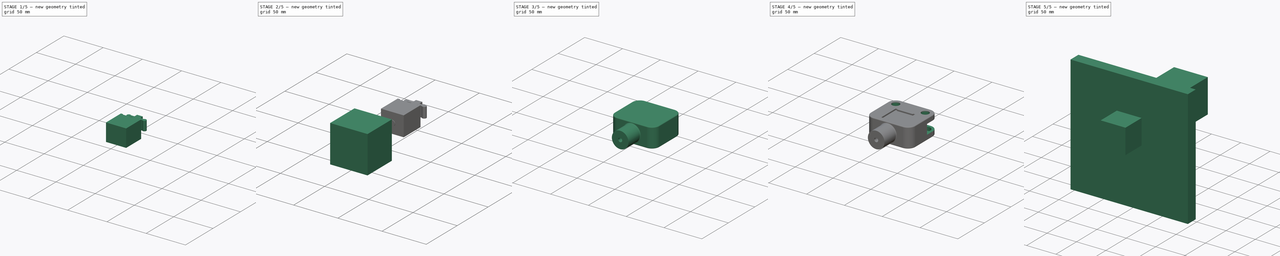
[diagram: build sequence overview — one tinted view per stage of 5, left to right]
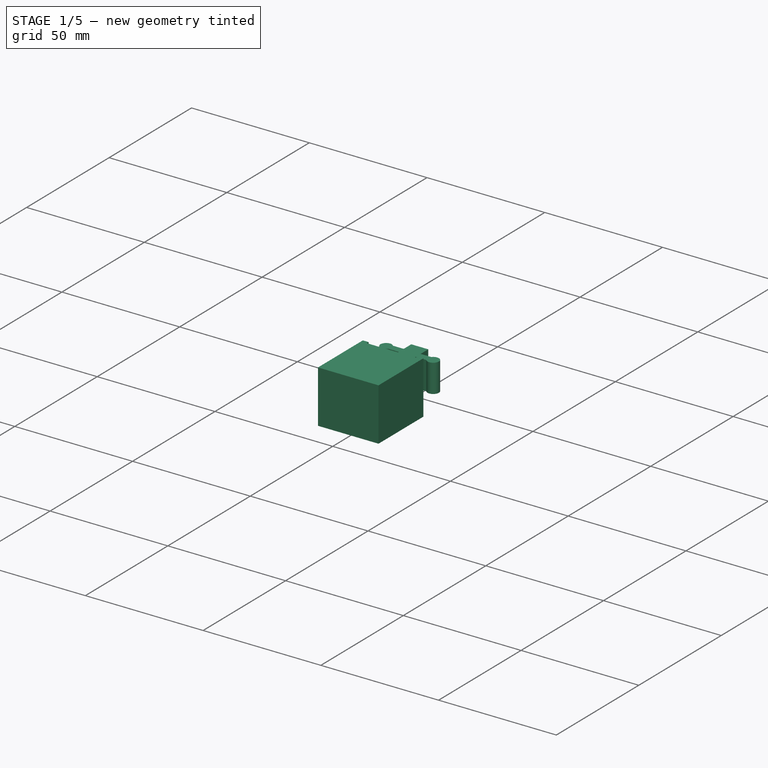
[diagram: stage 1 of 5 — iso view after this stage's code; geometry added in this stage tinted green]
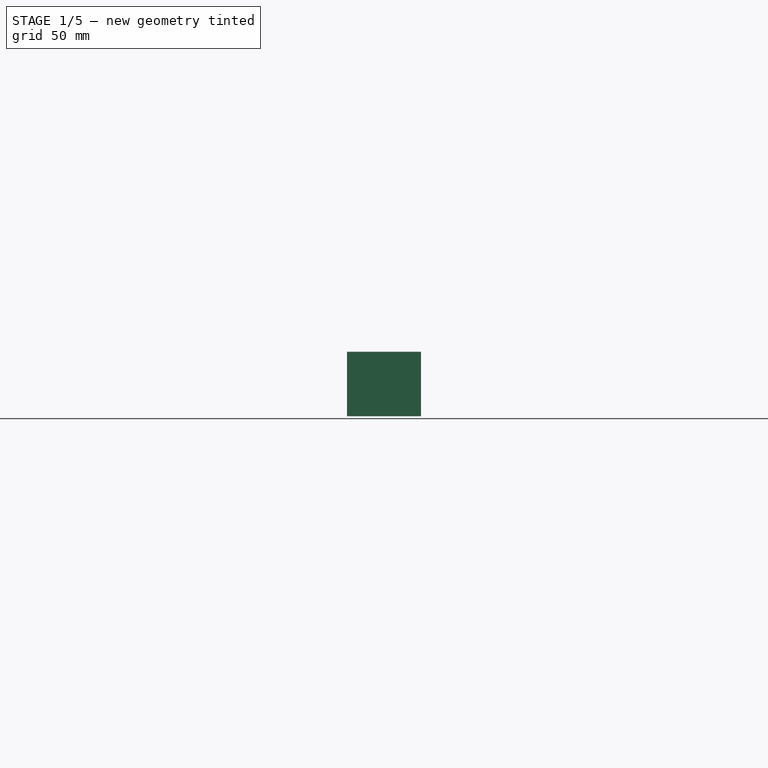
[diagram: stage 1 of 5 — front view after this stage's code; geometry added in this stage tinted green]
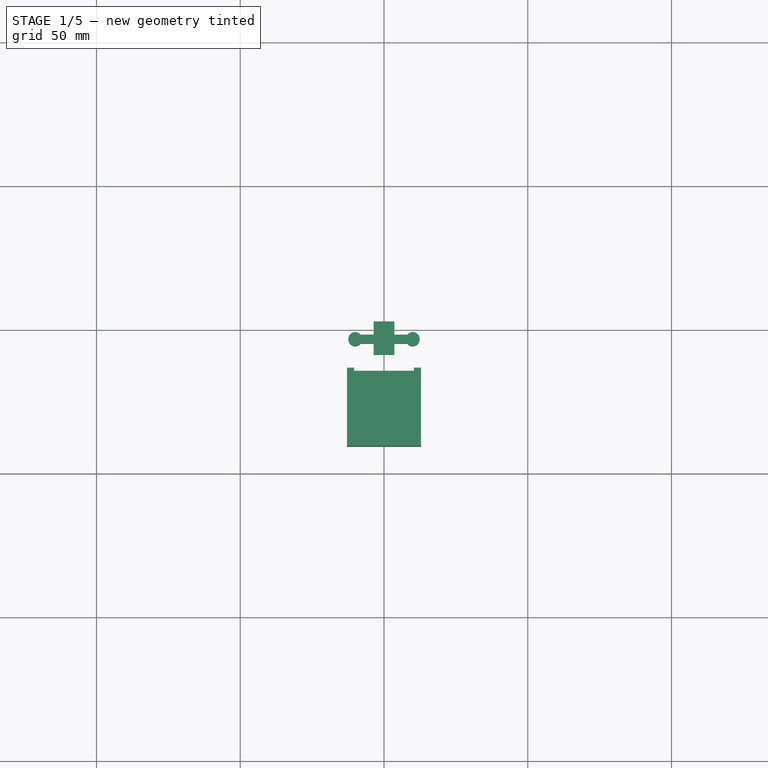
[diagram: stage 1 of 5 — top view after this stage's code; geometry added in this stage tinted green]
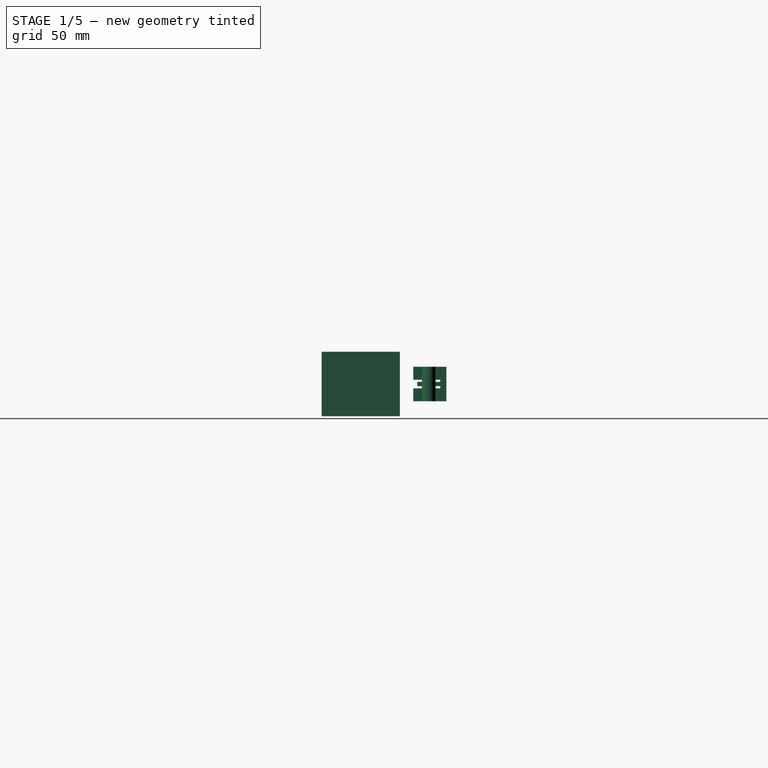
[diagram: stage 1 of 5 — right view after this stage's code; geometry added in this stage tinted green]
FCSTD DOCUMENT  (FreeCAD 0.15R4671 (Git))
Label: Claw5
License: All rights reserved
LicenseURL: http://en.wikipedia.org/wiki/All_rights_reserved
objects: Sketcher::SketchObject×24, PartDesign::Pad×13, PartDesign::Pocket×11, PartDesign::Fillet×2, Part::Box×1
note: 75 computed .brp shape members not serialized (recipe doc carries the construction recipe); baked Part::Feature solids carry a one-line shape summary decoded from their .brp

FEATURE [Sketcher::SketchObject] Sketch002
  Placement = pos=(0,0,-11.2) rot=(0,0,1;0rad)
  sketch-geometry (8):
    g0: LineSegment StartX=12.85 StartY=-63.3557 StartZ=0 EndX=12.85 EndY=-90.5557 EndZ=0
    g1: LineSegment StartX=12.85 StartY=-90.5557 StartZ=0 EndX=-12.85 EndY=-90.5557 EndZ=0
    g2: LineSegment StartX=-12.85 StartY=-90.5557 StartZ=0 EndX=-12.85 EndY=-63.3557 EndZ=0
    g3: LineSegment StartX=-12.85 StartY=-63.3557 StartZ=0 EndX=-10.4 EndY=-63.3557 EndZ=0
    g4: LineSegment StartX=-10.4 StartY=-63.3557 StartZ=0 EndX=-10.4 EndY=-64.4557 EndZ=0
    g5: LineSegment StartX=-10.4 StartY=-64.4557 StartZ=0 EndX=10.4 EndY=-64.4557 EndZ=0
    g6: LineSegment StartX=10.4 StartY=-64.4557 StartZ=0 EndX=10.4 EndY=-63.3557 EndZ=0
    g7: LineSegment StartX=10.4 StartY=-63.3557 StartZ=0 EndX=12.85 EndY=-63.3557 EndZ=0
  constraints (23):
    c: Coincident(g0,g1)
    c: Coincident(g1,g2)
    c: Horizontal(g1)
    c: Vertical(g0)
    c: Vertical(g2)
    c: Coincident(g2,g3)
    c: Coincident(g3,g4)
    c: Vertical(g4)
    c: Coincident(g4,g5)
    c: Horizontal(g5)
    c: Coincident(g5,g6)
    c: Vertical(g6)
    c: Coincident(g6,g7)
    c: Coincident(g7,g0)
    c: Horizontal(g7)
    c: Equal(g7,g3)
    c: Symmetric(g4,g5,g-2)
    c: DistanceX(g1) = -25.7
    c: DistanceX(g5) = 20.8
    c: DistanceY(g4) = -1.1
    c: Horizontal(g3)
    c: Equal(g4,g6)
    c: DistanceY(g0) = -27.2
FEATURE [PartDesign::Pad] Pad002
  Length = 22.4
  Length2 = 100
  Placement = pos=(0,0,-11.2) rot=(0,0,1;0rad)
  Sketch = -> Sketch002
  Type = 0
FEATURE [Sketcher::SketchObject] Sketch019
  Placement = pos=(0,0,-6) rot=(0,0,1;0rad)
  sketch-geometry (14):
    g0: LineSegment StartX=3.6 StartY=-54.8 StartZ=0 EndX=3.6 EndY=-58.7 EndZ=0
    g1: LineSegment StartX=3.6 StartY=-58.7 StartZ=0 EndX=-3.6 EndY=-58.7 EndZ=0
    g2: LineSegment StartX=-3.6 StartY=-58.7 StartZ=0 EndX=-3.6 EndY=-54.8 EndZ=0
    g3: LineSegment StartX=3.6 StartY=-51.8 StartZ=0 EndX=3.6 EndY=-47.2 EndZ=0
    g4: LineSegment StartX=3.6 StartY=-47.2 StartZ=0 EndX=-3.6 EndY=-47.2 EndZ=0
    g5: LineSegment StartX=-3.6 StartY=-47.2 StartZ=0 EndX=-3.6 EndY=-51.8 EndZ=0
    g6: ArcOfCircle CenterX=-10 CenterY=-53.3 CenterZ=0 NormalX=0 NormalY=0 NormalZ=1 Radius=2.4 StartAngle=0.675132 EndAngle=5.60805
    g7: ArcOfCircle CenterX=10 CenterY=-53.3 CenterZ=0 NormalX=0 NormalY=0 NormalZ=1 Radius=2.4 StartAngle=3.81672 EndAngle=8.74965
    g8: LineSegment StartX=-3.6 StartY=-54.8 StartZ=0 EndX=-8.1265 EndY=-54.8 EndZ=0
    g9: LineSegment StartX=-3.6 StartY=-51.8 StartZ=0 EndX=-8.1265 EndY=-51.8 EndZ=0
    g10: LineSegment [constr] StartX=-8.1265 StartY=-54.8 StartZ=0 EndX=-8.1265 EndY=-51.8 EndZ=0
    g11: LineSegment [constr] StartX=8.1265 StartY=-54.8 StartZ=0 EndX=8.1265 EndY=-51.8 EndZ=0
    g12: LineSegment StartX=3.6 StartY=-51.8 StartZ=0 EndX=8.1265 EndY=-51.8 EndZ=0
    g13: LineSegment StartX=8.1265 StartY=-54.8 StartZ=0 EndX=3.6 EndY=-54.8 EndZ=0
  constraints (41):
    c: Coincident(g0,g1)
    c: Coincident(g1,g2)
    c: Horizontal(g1)
    c: Vertical(g0)
    c: Vertical(g2)
    c: Symmetric(g1,g0,g-2)
    c: DistanceX(g1) = -7.2
    c: Coincident(g3,g4)
    c: Coincident(g4,g5)
    c: Horizontal(g4)
    c: Vertical(g3)
    c: Vertical(g5)
    c: Symmetric(g3,g4,g-2)
    c: Equal(g4,g1)
    c: Symmetric(g7,g6,g-2)
    c: DistanceX(g6,g7) = 20
    c: DistanceY(g-1,g6) = -53.3
    c: Coincident(g8,g2)
    c: Coincident(g8,g6)
    c: Horizontal(g8)
    c: Coincident(g9,g5)
    c: Coincident(g6,g9)
    c: Equal(g6,g7)
    c: Radius(g6) = 2.4
    c: Horizontal(g9)
    c: Coincident(g10,g6)
    c: Coincident(g10,g6)
    c: Vertical(g10)
    c: Coincident(g11,g7)
    c: Coincident(g11,g7)
    c: Vertical(g11)
    c: Equal(g11,g10)
    c: Coincident(g12,g3)
    c: Coincident(g12,g7)
    c: Coincident(g13,g7)
    c: Coincident(g13,g0)
    c: Horizontal(g13)
    c: Horizontal(g12)
    c: DistanceY(g11) = 3
    c: DistanceY(g1,g4) = 11.5
    c: DistanceY(g6,g1) = -5.4
FEATURE [PartDesign::Pad] Pad011
  Length = 12
  Length2 = 100
  Placement = pos=(0,0,-6) rot=(0,0,1;0rad)
  Sketch = -> Sketch019
  Type = 0
FEATURE [PartDesign::Pocket] Pocket011
  Length = 9.4
  Placement = pos=(0,0,-6) rot=(0,0,1;0rad)
  Sketch = -> Sketch020
  Type = 0
FEATURE [Sketcher::SketchObject] Sketch024
  Placement = pos=(0,-58.7,-6) rot=(1,0,0;1.5708rad)
  Support = -> Pocket011 [Face23]
  sketch-geometry (4):
    g0: LineSegment StartX=-3.6 StartY=6.75 StartZ=0 EndX=3.6 EndY=6.75 EndZ=0
    g1: LineSegment StartX=3.6 StartY=6.75 StartZ=0 EndX=3.6 EndY=5.25 EndZ=0
    g2: LineSegment StartX=3.6 StartY=5.25 StartZ=0 EndX=-3.6 EndY=5.25 EndZ=0
    g3: LineSegment StartX=-3.6 StartY=5.25 StartZ=0 EndX=-3.6 EndY=6.75 EndZ=0
FEATURE [PartDesign::Pocket] Pocket012
  Length = 1.4
  Placement = pos=(0,0,-6) rot=(0,0,1;0rad)
  Sketch = -> Sketch024
  Type = 0
FEATURE [Sketcher::SketchObject] Sketch021
  Placement = pos=(0,-47.2,-6) rot=(0,0.707107,0.707107;3.14159rad)
  Support = -> Pocket012 [Face18]
  sketch-geometry (1):
    g0: Circle CenterX=0 CenterY=6 CenterZ=0 NormalX=0 NormalY=0 NormalZ=1 Radius=1
  constraints (1):
    c: Radius(g0) = 1
FEATURE [PartDesign::Pocket] Pocket013  label="ROCKER"
  Length = 5
  Placement = pos=(0,0,-6) rot=(0,0,1;0rad)
  Sketch = -> Sketch021
  Type = 0
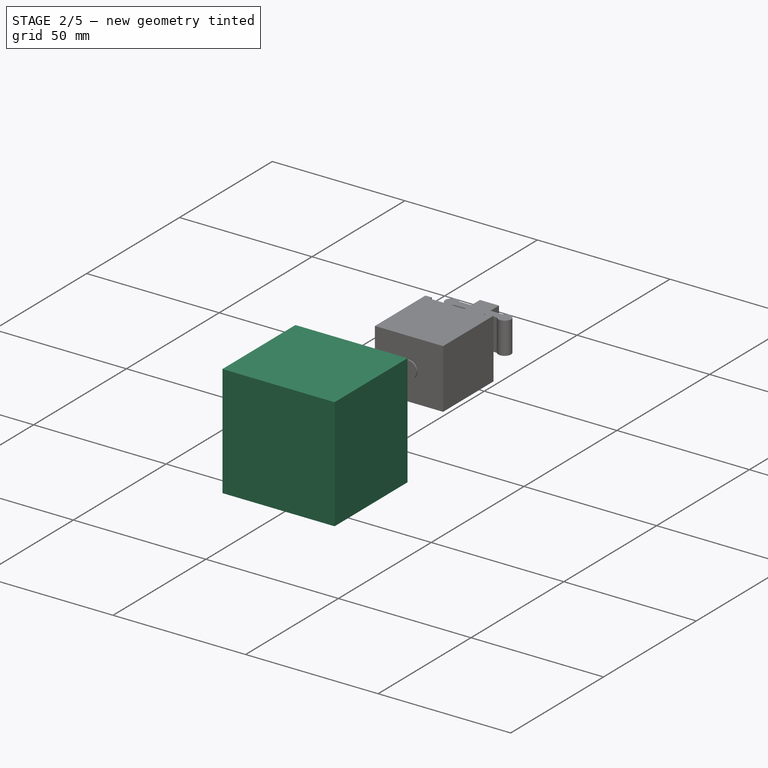
[diagram: stage 2 of 5 — iso view after this stage's code; geometry added in this stage tinted green]
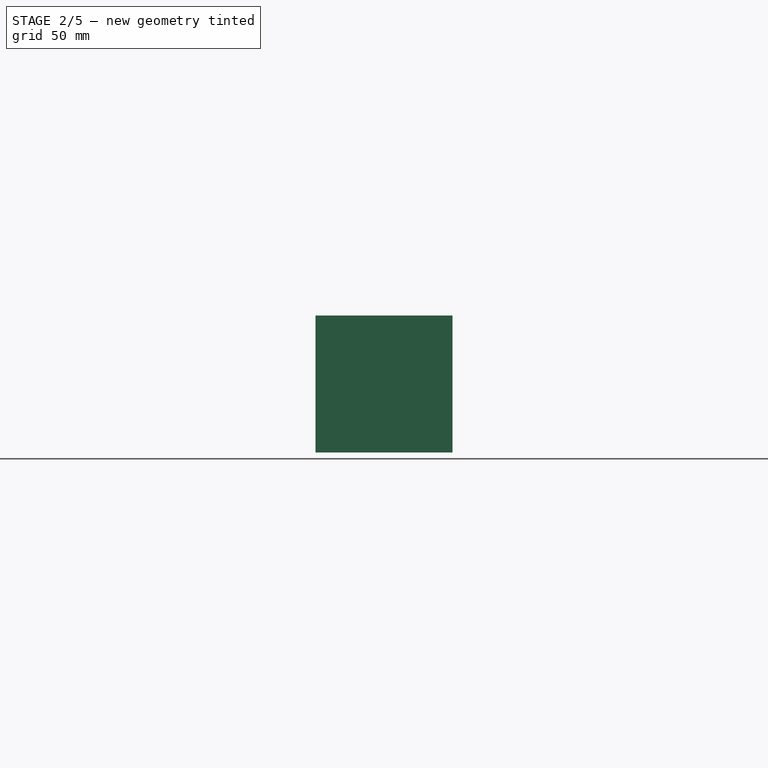
[diagram: stage 2 of 5 — front view after this stage's code; geometry added in this stage tinted green]
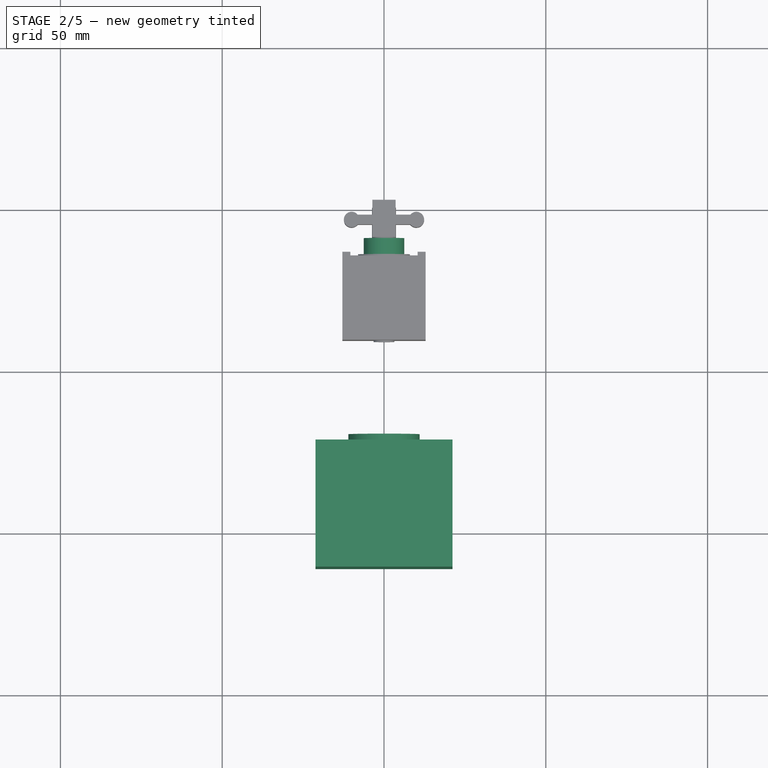
[diagram: stage 2 of 5 — top view after this stage's code; geometry added in this stage tinted green]
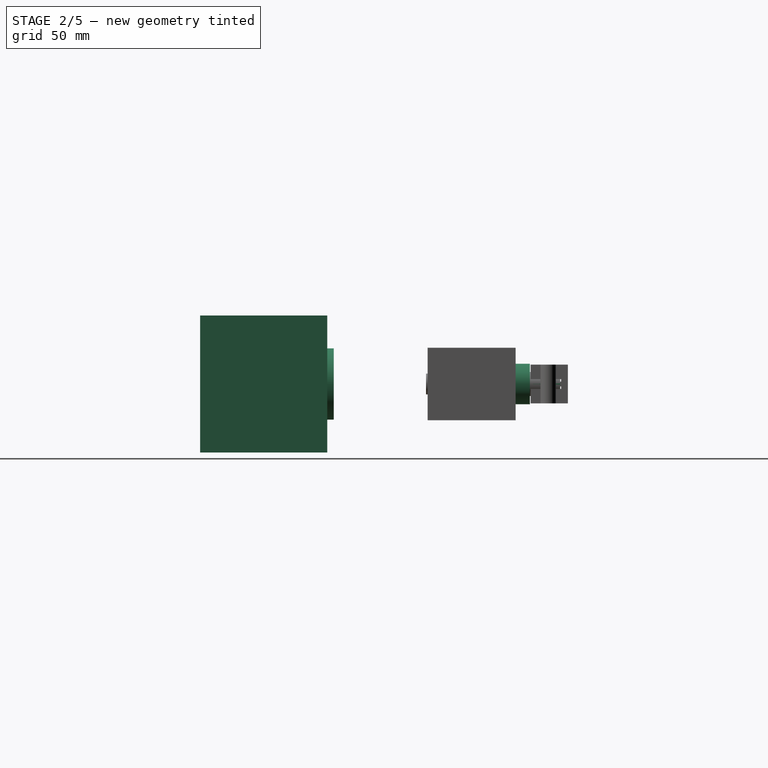
[diagram: stage 2 of 5 — right view after this stage's code; geometry added in this stage tinted green]
FEATURE [Sketcher::SketchObject] Sketch006
  Placement = pos=(0,0,-21.15) rot=(0,0,1;0rad)
  sketch-geometry (4):
    g0: LineSegment StartX=-21.15 StartY=-121.55 StartZ=0 EndX=21.15 EndY=-121.55 EndZ=0
    g1: LineSegment StartX=21.15 StartY=-121.55 StartZ=0 EndX=21.15 EndY=-160.85 EndZ=0
    g2: LineSegment StartX=21.15 StartY=-160.85 StartZ=0 EndX=-21.15 EndY=-160.85 EndZ=0
    g3: LineSegment StartX=-21.15 StartY=-160.85 StartZ=0 EndX=-21.15 EndY=-121.55 EndZ=0
  constraints (12):
    c: Coincident(g0,g1)
    c: Coincident(g1,g2)
    c: Coincident(g2,g3)
    c: Coincident(g3,g0)
    c: Horizontal(g0)
    c: Horizontal(g2)
    c: Vertical(g1)
    c: Vertical(g3)
    c: Symmetric(g0,g0,g-2)
    c: DistanceX(g0) = 42.3
    c: DistanceY(g1) = -39.3
    c: DistanceY(g-1,g0) = -121.55
FEATURE [PartDesign::Pad] Pad006
  Length = 42.3
  Length2 = 100
  Placement = pos=(0,0,-21.15) rot=(0,0,1;0rad)
  Sketch = -> Sketch006
  Type = 0
FEATURE [Sketcher::SketchObject] Sketch007
  ExternalGeometry = -> [Pad006]
  Placement = pos=(0,-121.55,-21.15) rot=(0,0.707107,0.707107;3.14159rad)
  Support = -> Pad006 [Face1]
  sketch-geometry (3):
    g0: LineSegment [constr] StartX=0 StartY=0 StartZ=0 EndX=0 EndY=21.15 EndZ=0
    g1: LineSegment [constr] StartX=0 StartY=21.15 StartZ=0 EndX=0 EndY=42.3 EndZ=0
    g2: Circle CenterX=0 CenterY=21.15 CenterZ=0 NormalX=0 NormalY=0 NormalZ=1 Radius=11
  constraints (8):
    c: Coincident(g0,g-1)
    c: Vertical(g0)
    c: Coincident(g1,g0)
    c: PointOnObject(g1,g-3)
    c: Vertical(g1)
    c: Equal(g0,g1)
    c: Coincident(g2,g0)
    c: Radius(g2) = 11
FEATURE [PartDesign::Pad] Pad007
  Length = 2
  Length2 = 100
  Placement = pos=(0,0,-21.15) rot=(0,0,1;0rad)
  Sketch = -> Sketch007
  Type = 0
FEATURE [PartDesign::Pad] Pad012
  Length = 0.5
  Length2 = 100
  Placement = pos=(0,0,-11.2) rot=(0,0,1;0rad)
  Sketch = -> Sketch004
  Type = 0
FEATURE [Sketcher::SketchObject] Sketch003
  ExternalGeometry = -> [Pad002]
  Placement = pos=(0,-64.4557,-11.2) rot=(0,0.707107,0.707107;3.14159rad)
  Support = -> Pad012 [Face11]
  sketch-geometry (3):
    g0: Circle CenterX=0 CenterY=11.2 CenterZ=0 NormalX=0 NormalY=0 NormalZ=1 Radius=8
    g1: LineSegment [constr] StartX=0 StartY=0 StartZ=0 EndX=0 EndY=11.2 EndZ=0
    g2: LineSegment [constr] StartX=0 StartY=11.2 StartZ=0 EndX=0 EndY=22.4 EndZ=0
  constraints (8):
    c: PointOnObject(g0,g-2)
    c: Coincident(g1,g-1)
    c: Coincident(g1,g0)
    c: Coincident(g2,g0)
    c: PointOnObject(g2,g-3)
    c: Vertical(g2)
    c: Equal(g1,g2)
    c: Radius(g0) = 8
FEATURE [PartDesign::Pad] Pad013
  Length = 0.5
  Length2 = 100
  Placement = pos=(0,0,-11.2) rot=(0,0,1;0rad)
  Sketch = -> Sketch003
  Type = 0
FEATURE [Sketcher::SketchObject] Sketch022
  ExternalGeometry = -> [Pad013]
  Placement = pos=(0,-63.9557,-11.2) rot=(0,0.707107,0.707107;3.14159rad)
  Support = -> Pad013 [Face14]
  sketch-geometry (1):
    g0: Circle CenterX=0 CenterY=11.2 CenterZ=0 NormalX=0 NormalY=0 NormalZ=1 Radius=6.25
  constraints (2):
    c: Coincident(g0,g-3)
    c: Radius(g0) = 6.25
FEATURE [PartDesign::Pad] Pad014
  Length = 5
  Length2 = 100
  Placement = pos=(0,0,-11.2) rot=(0,0,1;0rad)
  Sketch = -> Sketch022
  Type = 0
FEATURE [Sketcher::SketchObject] Sketch023
  ExternalGeometry = -> [Pad014]
  Placement = pos=(0,-58.9557,-11.2) rot=(0,0.707107,0.707107;3.14159rad)
  Support = -> Pad014 [Face16]
  sketch-geometry (1):
    g0: Circle CenterX=0 CenterY=11.2 CenterZ=0 NormalX=0 NormalY=0 NormalZ=1 Radius=3.7
  constraints (2):
    c: Coincident(g0,g-3)
    c: Radius(g0) = 3.7
FEATURE [PartDesign::Pad] Pad015  label="SOLENOID"
  Length = 9.4
  Length2 = 100
  Placement = pos=(0,0,-11.2) rot=(0,0,1;0rad)
  Sketch = -> Sketch023
  Type = 0
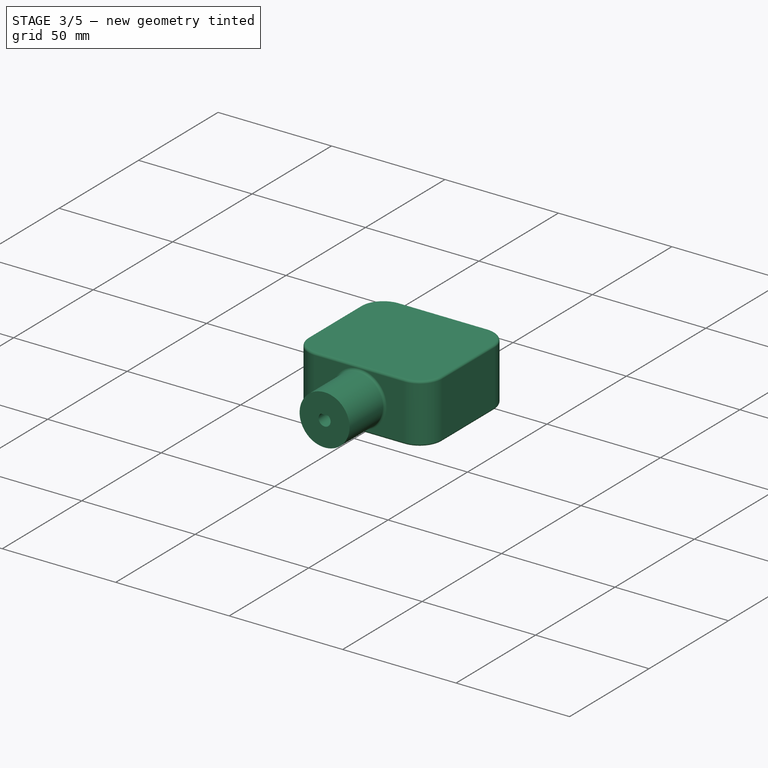
[diagram: stage 3 of 5 — iso view after this stage's code; geometry added in this stage tinted green]
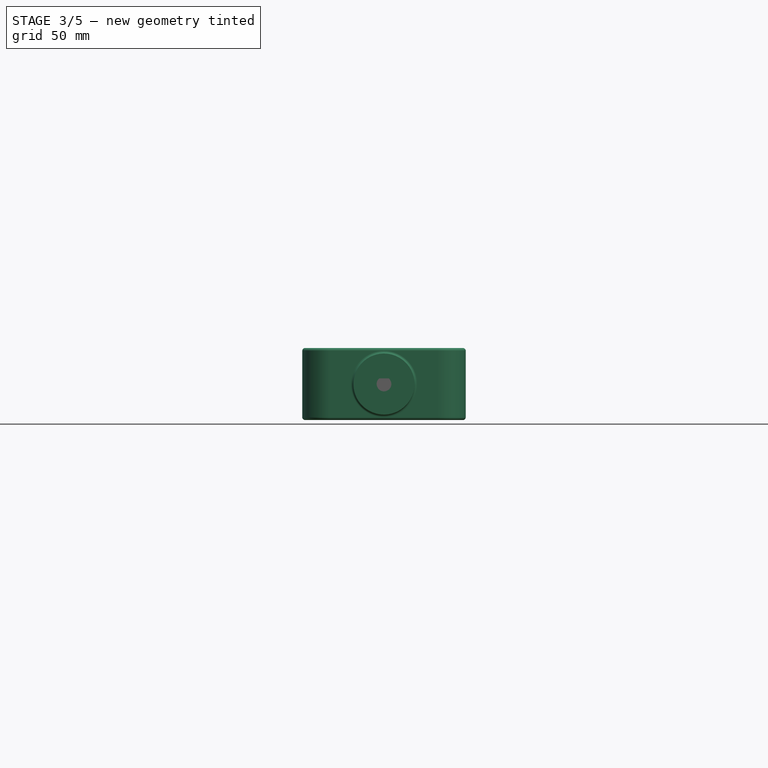
[diagram: stage 3 of 5 — front view after this stage's code; geometry added in this stage tinted green]
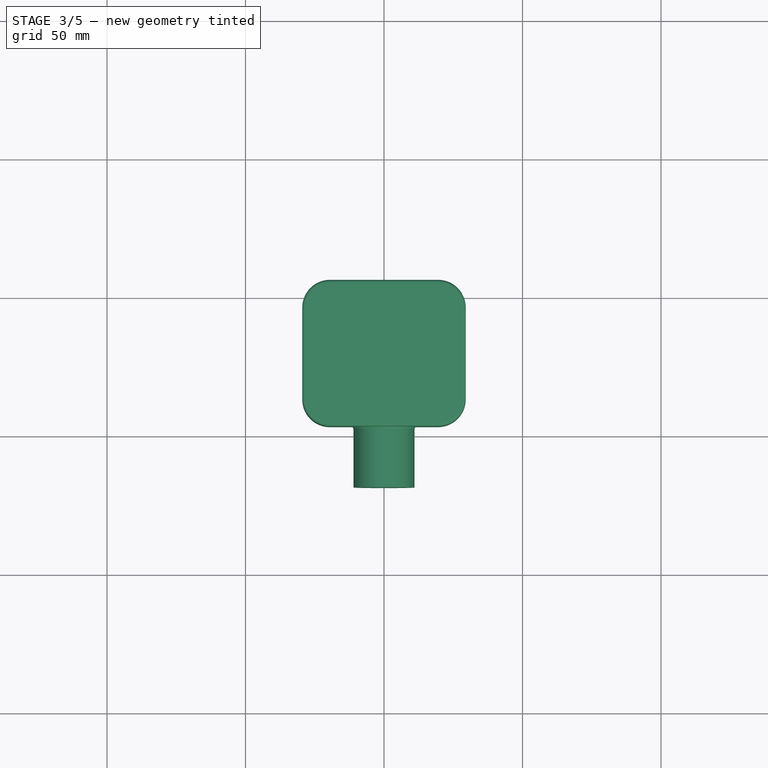
[diagram: stage 3 of 5 — top view after this stage's code; geometry added in this stage tinted green]
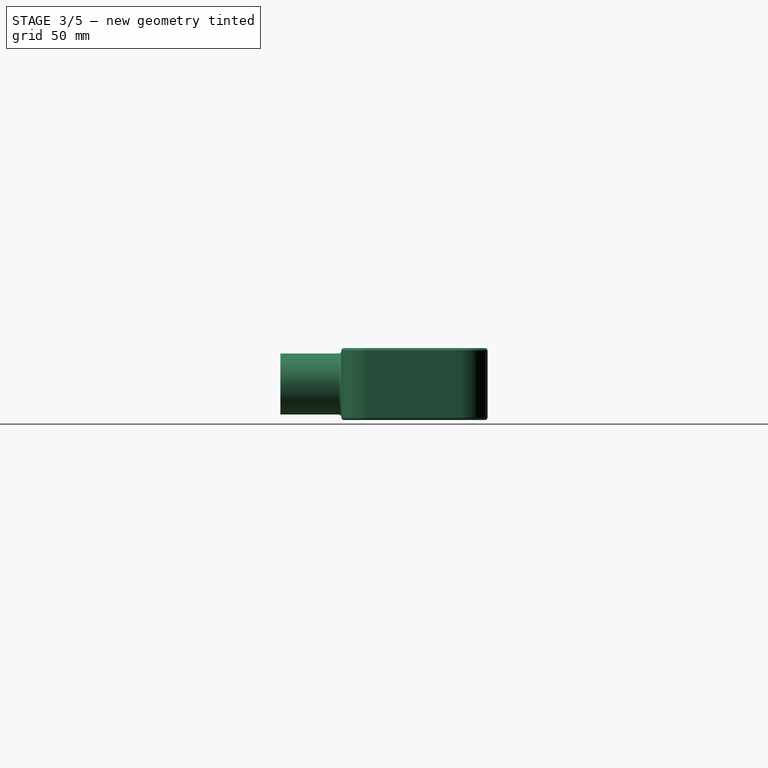
[diagram: stage 3 of 5 — right view after this stage's code; geometry added in this stage tinted green]
FEATURE [Sketcher::SketchObject] Sketch001
  Placement = pos=(0,-53.75,-13) rot=(0,0,1;0rad)
  sketch-geometry (34):
    g0: LineSegment [constr] StartX=-28.95 StartY=82.9 StartZ=0 EndX=28.95 EndY=82.9 EndZ=0
    g1: LineSegment [constr] StartX=28.95 StartY=82.9 StartZ=0 EndX=28.95 EndY=25 EndZ=0
    g2: LineSegment [constr] StartX=28.95 StartY=25 StartZ=0 EndX=-28.95 EndY=25 EndZ=0
    g3: LineSegment [constr] StartX=-28.95 StartY=25 StartZ=0 EndX=-28.95 EndY=82.9 EndZ=0
    g4: Circle [constr] CenterX=0 CenterY=53.95 CenterZ=0 NormalX=0 NormalY=0 NormalZ=1 Radius=40.9415
    g5: LineSegment [constr] StartX=-28.95 StartY=25 StartZ=0 EndX=-40.9415 EndY=25 EndZ=0
    g6: LineSegment [constr] StartX=-40.9415 StartY=25 StartZ=0 EndX=-40.9415 EndY=82.9 EndZ=0
    g7: LineSegment [constr] StartX=-40.9415 StartY=82.9 StartZ=0 EndX=-28.95 EndY=82.9 EndZ=0
    g8: LineSegment [constr] StartX=28.95 StartY=82.9 StartZ=0 EndX=40.9415 EndY=82.9 EndZ=0
    g9: LineSegment [constr] StartX=40.9415 StartY=82.9 StartZ=0 EndX=40.9415 EndY=25 EndZ=0
    g10: LineSegment [constr] StartX=40.9415 StartY=25 StartZ=0 EndX=28.95 EndY=25 EndZ=0
    g11: LineSegment [constr] StartX=-2.5 StartY=-65.8 StartZ=0 EndX=2.5 EndY=-65.8 EndZ=0
    g12: LineSegment [constr] StartX=2.5 StartY=-65.8 StartZ=0 EndX=2.5 EndY=-44.8 EndZ=0
    g13: LineSegment [constr] StartX=2.5 StartY=-44.8 StartZ=0 EndX=-2.5 EndY=-44.8 EndZ=0
    g14: LineSegment [constr] StartX=-2.5 StartY=-44.8 StartZ=0 EndX=-2.5 EndY=-65.8 EndZ=0
    g15: LineSegment StartX=-19.5 StartY=10 StartZ=0 EndX=19.5 EndY=10 EndZ=0
    g16: LineSegment StartX=29.5 StartY=0 StartZ=0 EndX=29.5 EndY=-32.8 EndZ=0
    g17: LineSegment StartX=19.5 StartY=-42.8 StartZ=0 EndX=-19.5 EndY=-42.8 EndZ=0
    g18: LineSegment StartX=-29.5 StartY=-32.8 StartZ=0 EndX=-29.5 EndY=0 EndZ=0
    g19: LineSegment [constr] StartX=-60 StartY=-46.7 StartZ=0 EndX=60 EndY=-46.7 EndZ=0
    g20: ArcOfCircle CenterX=-19.5 CenterY=0 CenterZ=0 NormalX=0 NormalY=0 NormalZ=1 Radius=10 StartAngle=1.5708 EndAngle=3.14159
    g21: ArcOfCircle CenterX=19.5 CenterY=0 CenterZ=0 NormalX=0 NormalY=0 NormalZ=1 Radius=10 StartAngle=0 EndAngle=1.5708
    g22: ArcOfCircle CenterX=-19.5 CenterY=-32.8 CenterZ=0 NormalX=0 NormalY=0 NormalZ=1 Radius=10 StartAngle=3.14159 EndAngle=4.71239
    g23: ArcOfCircle CenterX=19.5 CenterY=-32.8 CenterZ=0 NormalX=0 NormalY=0 NormalZ=1 Radius=10 StartAngle=4.71239 EndAngle=6.28319
    g24: LineSegment [constr] StartX=12.65 StartY=-9 StartZ=0 EndX=12.65 EndY=-35.6 EndZ=0
    g25: LineSegment [constr] StartX=12.65 StartY=-35.6 StartZ=0 EndX=-12.65 EndY=-35.6 EndZ=0
    g26: LineSegment [constr] StartX=-12.65 StartY=-35.6 StartZ=0 EndX=-12.65 EndY=-9 EndZ=0
    g27: LineSegment [constr] StartX=-12.65 StartY=-9 StartZ=0 EndX=-3.65 EndY=-9 EndZ=0
    g28: LineSegment [constr] StartX=-3.65 StartY=-9 StartZ=0 EndX=-3.65 EndY=2 EndZ=0
    g29: LineSegment [constr] StartX=-3.65 StartY=2 StartZ=0 EndX=3.65 EndY=2 EndZ=0
    g30: LineSegment [constr] StartX=3.65 StartY=2 StartZ=0 EndX=3.65 EndY=-9 EndZ=0
    g31: LineSegment [constr] StartX=3.65 StartY=-9 StartZ=0 EndX=12.65 EndY=-9 EndZ=0
    g32: Circle [constr] CenterX=-19.5 CenterY=0 CenterZ=0 NormalX=0 NormalY=0 NormalZ=1 Radius=6.5
    g33: Circle [constr] CenterX=19.5 CenterY=0 CenterZ=0 NormalX=0 NormalY=0 NormalZ=1 Radius=6.5
  constraints (94):
    c: Coincident(g0,g1)
    c: Coincident(g1,g2)
    c: Coincident(g2,g3)
    c: Coincident(g3,g0)
    c: Horizontal(g0)
    c: Horizontal(g2)
    c: Vertical(g1)
    c: Vertical(g3)
    c: Equal(g2,g1)
    c: DistanceY(g1) = -57.9
    c: Symmetric(g0,g0,g-2)
    c: PointOnObject(g4,g-2)
    c: PointOnObject(g1,g4)
    c: PointOnObject(g0,g4)
    c: Coincident(g2,g5)
    c: Horizontal(g5)
    c: Coincident(g5,g6)
    c: Vertical(g6)
    c: Coincident(g6,g7)
    c: Coincident(g7,g0)
    c: Horizontal(g7)
    c: Horizontal(g8)
    c: Coincident(g8,g9)
    c: Vertical(g9)
    c: Coincident(g9,g10)
    c: Coincident(g10,g1)
    c: Horizontal(g10)
    c: Tangent(g9,g4)
    c: Tangent(g6,g4)
    c: Coincident(g0,g8)
    c: DistanceY(g-1,g1) = 25
    c: Coincident(g11,g12)
    c: Coincident(g12,g13)
    c: Coincident(g13,g14)
    c: Coincident(g14,g11)
    c: Horizontal(g11)
    c: Horizontal(g13)
    c: Vertical(g12)
    c: Vertical(g14)
    c: DistanceX(g11) = 5
    c: Symmetric(g13,g12,g-2)
    c: DistanceY(g12) = 21
    c: DistanceY(g1,g12) = -69.8
    c: Horizontal(g15)
    c: Horizontal(g17)
    c: Vertical(g16)
    c: Vertical(g18)
    c: Horizontal(g19)
    c: Symmetric(g19,g19,g-2)
    c: DistanceX(g19) = 120
    c: DistanceY(g11,g19) = 19.1
    c: Tangent(g18,g20) = 1.5708
    c: Tangent(g15,g20) = 1.5708
    c: Tangent(g15,g21) = 1.5708
    c: Tangent(g16,g21) = 1.5708
    c: Radius(g20) = 10
    c: Tangent(g18,g22) = 1.5708
    c: Tangent(g17,g22) = 1.5708
    c: Tangent(g17,g23) = 1.5708
    c: Tangent(g16,g23) = 1.5708
    c: Equal(g22,g23)
    c: DistanceY(g17,g12) = -2
    c: Coincident(g24,g25)
    c: Coincident(g25,g26)
    c: Horizontal(g25)
    c: Vertical(g24)
    c: Vertical(g26)
    c: Symmetric(g25,g24,g-2)
    c: DistanceX(g25) = -25.3
    c: DistanceY(g24) = -26.6
    c: Coincident(g26,g27)
    c: Horizontal(g27)
    c: Coincident(g27,g28)
    c: Vertical(g28)
    c: Coincident(g28,g29)
    c: Horizontal(g29)
    c: Coincident(g29,g30)
    c: Vertical(g30)
    c: Coincident(g30,g31)
    c: Coincident(g31,g24)
    c: Horizontal(g31)
    c: Symmetric(g28,g29,g-2)
    c: DistanceX(g29) = 7.3
    c: DistanceY(g30) = -11
    c: Equal(g28,g30)
    c: DistanceY(g-1,g29) = 2
    c: Symmetric(g20,g21,g-2)
    c: PointOnObject(g20,g-1)
    c: DistanceX(g20,g21) = 39
    c: Equal(g22,g20)
    c: Coincident(g32,g20)
    c: Coincident(g33,g21)
    c: Equal(g32,g33)
    c: Radius(g32) = 6.5
FEATURE [PartDesign::Pad] Pad001
  Length = 26
  Length2 = 100
  Placement = pos=(0,-53.75,-13) rot=(0,0,1;0rad)
  Sketch = -> Sketch001
  Type = 0
FEATURE [PartDesign::Fillet] Fillet003
  Base = -> Pad001 [Edge4,Edge7,Edge10,Edge13,Edge16,Edge19,Edge22,Edge24,Edge3,Edge6,Edge9,Edge12,Edge15,Edge18,Edge21,Edge23]
  Placement = pos=(0,-53.75,-13) rot=(0,0,1;0rad)
  Radius = 1
FEATURE [Sketcher::SketchObject] Sketch004
  Placement = pos=(0,-90.5557,-11.2) rot=(1,0,0;1.5708rad)
  Support = -> Pad002 [Face2]
  sketch-geometry (1):
    g0: Circle CenterX=0 CenterY=11.2 CenterZ=0 NormalX=0 NormalY=0 NormalZ=1 Radius=3.2
  constraints (1):
    c: Radius(g0) = 3.2
FEATURE [Sketcher::SketchObject] Sketch005
  ExternalGeometry = -> [Fillet003]
  Placement = pos=(0,-96.55,-13) rot=(1,0,0;1.5708rad)
  Support = -> Fillet003 [Face8]
  sketch-geometry (3):
    g0: LineSegment [constr] StartX=0 StartY=26 StartZ=0 EndX=0 EndY=13 EndZ=0
    g1: LineSegment [constr] StartX=0 StartY=13 StartZ=0 EndX=0 EndY=0 EndZ=0
    g2: Circle CenterX=0 CenterY=13 CenterZ=0 NormalX=0 NormalY=0 NormalZ=1 Radius=11
  constraints (8):
    c: PointOnObject(g0,g-3)
    c: Vertical(g0)
    c: Coincident(g1,g0)
    c: Coincident(g1,g-1)
    c: Vertical(g1)
    c: Equal(g1,g0)
    c: Coincident(g2,g0)
    c: Radius(g2) = 11
FEATURE [PartDesign::Pad] Pad005
  Length = 22
  Length2 = 100
  Placement = pos=(0,-53.75,-13) rot=(0,0,1;0rad)
  Sketch = -> Sketch005
  Type = 0
FEATURE [PartDesign::Fillet] Fillet004
  Base = -> Pad005 [Edge2]
  Placement = pos=(0,-53.75,-13) rot=(0,0,1;0rad)
  Radius = 1
FEATURE [Sketcher::SketchObject] Sketch011
  ExternalGeometry = -> [Pad007]
  Placement = pos=(0,-118.55,-13) rot=(1,0,0;1.5708rad)
  Support = -> Fillet004 [Face3]
  sketch-geometry (4):
    g0: Circle [constr] CenterX=0 CenterY=13 CenterZ=0 NormalX=0 NormalY=0 NormalZ=1 Radius=2.65
    g1: LineSegment StartX=-1.67929 StartY=15.05 StartZ=0 EndX=1.67929 EndY=15.05 EndZ=0
    g2: GeomPoint [constr] X=0 Y=10.35 Z=0
    g3: ArcOfCircle CenterX=0 CenterY=13 CenterZ=0 NormalX=0 NormalY=0 NormalZ=1 Radius=2.65 StartAngle=2.25711 EndAngle=7.16766
  constraints (11):
    c: Coincident(g0,g-3)
    c: Radius(g0) = 2.65
    c: PointOnObject(g1,g0)
    c: PointOnObject(g1,g0)
    c: Horizontal(g1)
    c: PointOnObject(g2,g0)
    c: PointOnObject(g2,g-2)
    c: DistanceY(g1,g2) = -4.7
    c: Coincident(g3,g0)
    c: Coincident(g3,g1)
    c: Coincident(g3,g1)
FEATURE [PartDesign::Pocket] Pocket
  Length = 21
  Placement = pos=(0,-53.75,-13) rot=(0,0,1;0rad)
  Sketch = -> Sketch011
  Type = 1
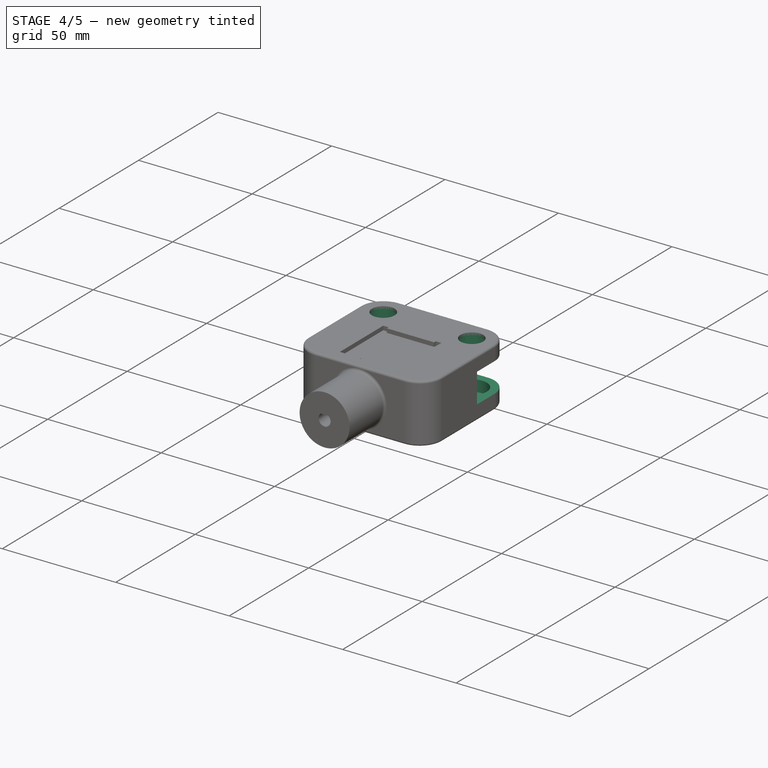
[diagram: stage 4 of 5 — iso view after this stage's code; geometry added in this stage tinted green]
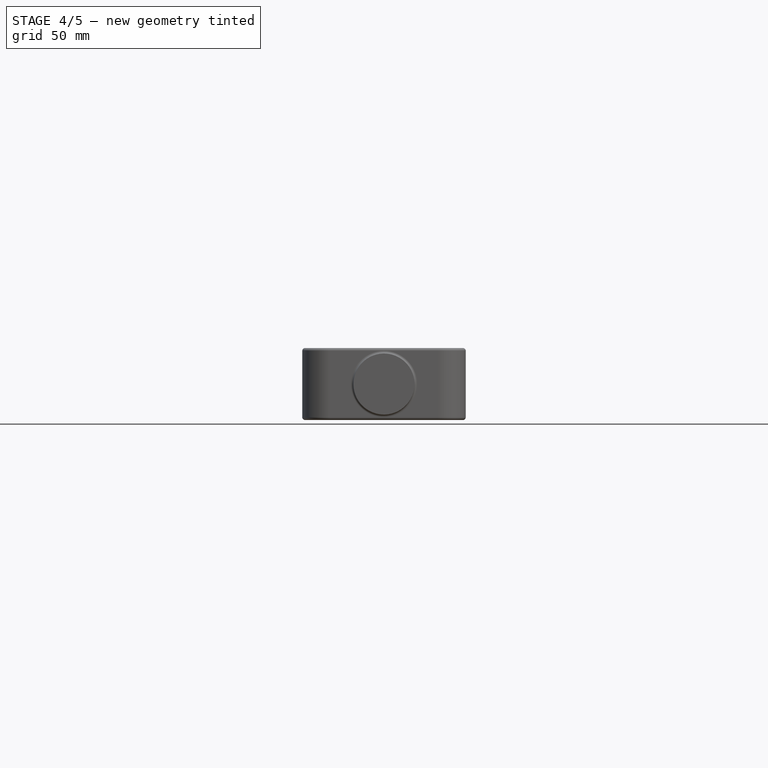
[diagram: stage 4 of 5 — front view after this stage's code; geometry added in this stage tinted green]
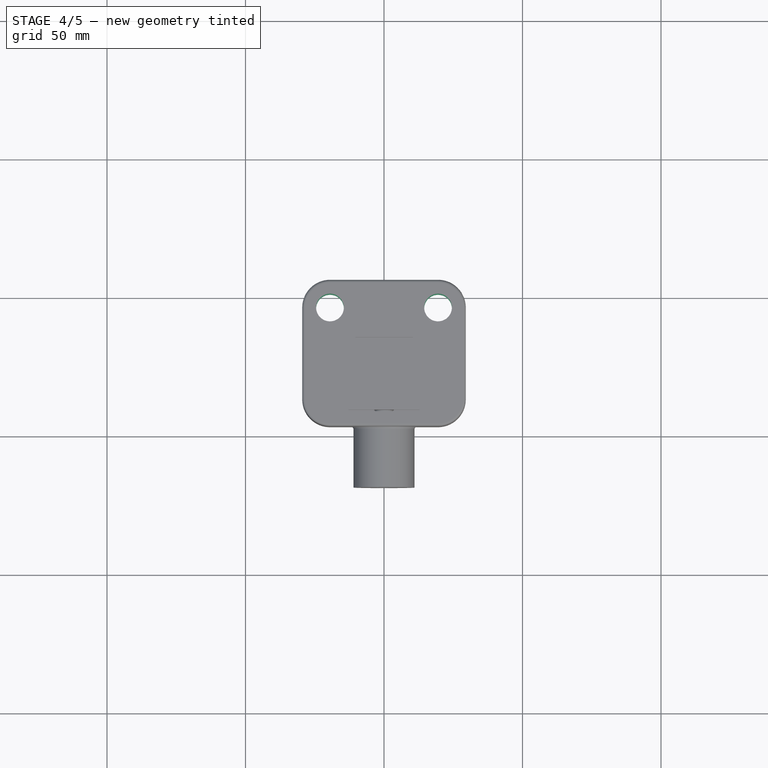
[diagram: stage 4 of 5 — top view after this stage's code; geometry added in this stage tinted green]
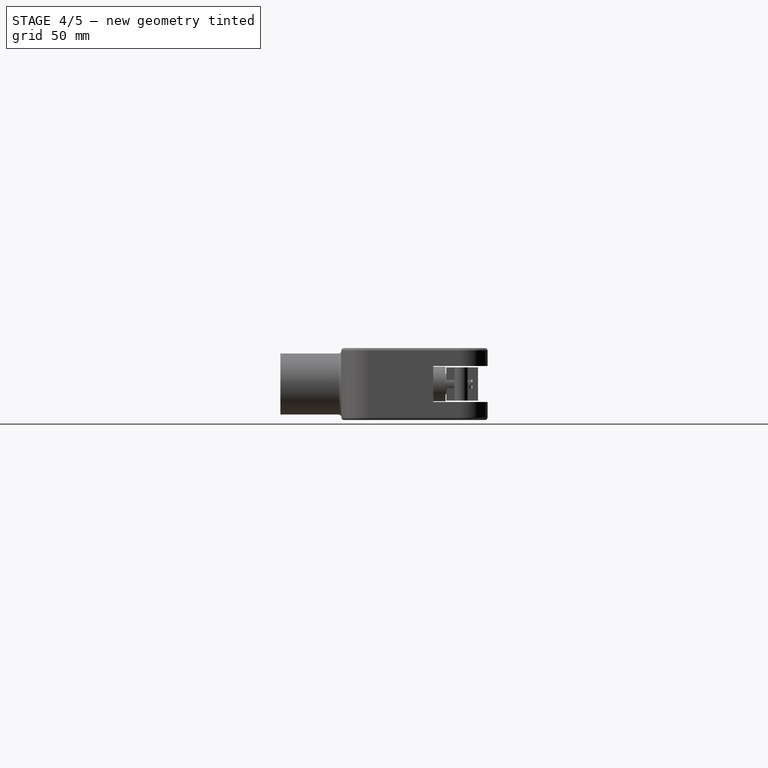
[diagram: stage 4 of 5 — right view after this stage's code; geometry added in this stage tinted green]
FEATURE [Sketcher::SketchObject] Sketch009
  ExternalGeometry = -> [Fillet004]
  Placement = pos=(29.5,-53.75,-13) rot=(0.57735,0.57735,0.57735;2.0944rad)
  Support = -> Pocket [Face14]
  sketch-geometry (6):
    g0: LineSegment StartX=11 StartY=19.5 StartZ=0 EndX=-11 EndY=19.5 EndZ=0
    g1: LineSegment StartX=-11 StartY=19.5 StartZ=0 EndX=-11 EndY=6.5 EndZ=0
    g2: LineSegment StartX=-11 StartY=6.5 StartZ=0 EndX=11 EndY=6.5 EndZ=0
    g3: LineSegment StartX=11 StartY=6.5 StartZ=0 EndX=11 EndY=19.5 EndZ=0
    g4: LineSegment [constr] StartX=-11 StartY=19.5 StartZ=0 EndX=-11 EndY=26 EndZ=0
    g5: LineSegment [constr] StartX=-11 StartY=6.5 StartZ=0 EndX=-11 EndY=0 EndZ=0
  constraints (18):
    c: Coincident(g0,g1)
    c: Coincident(g1,g2)
    c: Coincident(g2,g3)
    c: Coincident(g3,g0)
    c: Horizontal(g0)
    c: Horizontal(g2)
    c: Vertical(g1)
    c: Vertical(g3)
    c: Coincident(g4,g0)
    c: PointOnObject(g4,g-3)
    c: Vertical(g4)
    c: Coincident(g5,g1)
    c: PointOnObject(g5,g-4)
    c: Vertical(g5)
    c: Equal(g5,g4)
    c: DistanceY(g1) = -13
    c: DistanceX(g0) = -22
    c: DistanceX(g0,g-3) = 11
FEATURE [PartDesign::Pocket] Pocket001
  Length = 5
  Placement = pos=(0,-53.75,-13) rot=(0,0,1;0rad)
  Sketch = -> Sketch009
  Type = 1
FEATURE [Sketcher::SketchObject] Sketch012
  ExternalGeometry = -> [Pocket001]
  Placement = pos=(0,-53.75,13) rot=(0,0,1;0rad)
  Support = -> Pocket001 [Face17]
  sketch-geometry (2):
    g0: Circle CenterX=-19.5 CenterY=0 CenterZ=0 NormalX=0 NormalY=0 NormalZ=1 Radius=5
    g1: Circle CenterX=19.5 CenterY=0 CenterZ=0 NormalX=0 NormalY=0 NormalZ=1 Radius=5
  constraints (2):
    c: Equal(g1,g0)
    c: Radius(g0) = 5
FEATURE [PartDesign::Pocket] Pocket002
  Length = 5
  Placement = pos=(0,-53.75,-13) rot=(0,0,1;0rad)
  Sketch = -> Sketch012
  Type = 1
FEATURE [Sketcher::SketchObject] Sketch013
  Placement = pos=(0,-53.75,6.5) rot=(1,0,0;3.14159rad)
  Support = -> Pocket002 [Face21]
  sketch-geometry (2):
    g0: Circle CenterX=19.5 CenterY=0 CenterZ=0 NormalX=0 NormalY=0 NormalZ=1 Radius=6.65
    g1: Circle CenterX=-19.5 CenterY=0 CenterZ=0 NormalX=0 NormalY=0 NormalZ=1 Radius=6.65
  constraints (4):
    c: PointOnObject(g1,g-1)
    c: Symmetric(g1,g0,g-2)
    c: Radius(g0) = 6.65
    c: DistanceX(g1,g0) = 39
FEATURE [PartDesign::Pocket] Pocket003
  Length = 5
  Placement = pos=(0,-53.75,-13) rot=(0,0,1;0rad)
  Sketch = -> Sketch013
  Type = 0
FEATURE [Sketcher::SketchObject] Sketch014
  Placement = pos=(0,-53.75,-6.5) rot=(0,0,1;0rad)
  Support = -> Pocket003 [Face24]
  sketch-geometry (2):
    g0: Circle CenterX=-19.5 CenterY=0 CenterZ=0 NormalX=0 NormalY=0 NormalZ=1 Radius=6.65
    g1: Circle CenterX=19.5 CenterY=0 CenterZ=0 NormalX=0 NormalY=0 NormalZ=1 Radius=6.65
  constraints (6):
    c: PointOnObject(g0,g-1)
    c: PointOnObject(g1,g-1)
    c: Symmetric(g1,g0,g-2)
    c: Equal(g0,g1)
    c: Radius(g1) = 6.65
    c: DistanceX(g0,g1) = 39
FEATURE [PartDesign::Pocket] Pocket004
  Length = 5
  Placement = pos=(0,-53.75,-13) rot=(0,0,1;0rad)
  Sketch = -> Sketch014
  Type = 0
FEATURE [Sketcher::SketchObject] Sketch015
  Placement = pos=(0,-53.75,13) rot=(0,0,1;0rad)
  Support = -> Pocket004 [Face17]
  sketch-geometry (12):
    g0: LineSegment StartX=12.8 StartY=-9.6 StartZ=0 EndX=12.8 EndY=-36.9 EndZ=0
    g1: LineSegment StartX=-12.8 StartY=-36.9 StartZ=0 EndX=-12.8 EndY=-9.6 EndZ=0
    g2: LineSegment StartX=-12.8 StartY=-9.6 StartZ=0 EndX=-10.4 EndY=-9.6 EndZ=0
    g3: LineSegment StartX=-10.4 StartY=-9.6 StartZ=0 EndX=-10.4 EndY=-10.7 EndZ=0
    g4: LineSegment StartX=-10.4 StartY=-10.7 StartZ=0 EndX=10.4 EndY=-10.7 EndZ=0
    g5: LineSegment StartX=10.4 StartY=-10.7 StartZ=0 EndX=10.4 EndY=-9.6 EndZ=0
    g6: LineSegment StartX=10.4 StartY=-9.6 StartZ=0 EndX=12.8 EndY=-9.6 EndZ=0
    g7: LineSegment StartX=12.8 StartY=-36.9 StartZ=0 EndX=3.5 EndY=-36.9 EndZ=0
    g8: LineSegment StartX=3.5 StartY=-36.9 StartZ=0 EndX=3.5 EndY=-37.4 EndZ=0
    g9: LineSegment StartX=3.5 StartY=-37.4 StartZ=0 EndX=-3.5 EndY=-37.4 EndZ=0
    g10: LineSegment StartX=-3.5 StartY=-37.4 StartZ=0 EndX=-3.5 EndY=-36.9 EndZ=0
    g11: LineSegment StartX=-3.5 StartY=-36.9 StartZ=0 EndX=-12.8 EndY=-36.9 EndZ=0
  constraints (36):
    c: Vertical(g0)
    c: Vertical(g1)
    c: Coincident(g1,g2)
    c: Horizontal(g2)
    c: Coincident(g2,g3)
    c: Vertical(g3)
    c: Coincident(g3,g4)
    c: Horizontal(g4)
    c: Coincident(g4,g5)
    c: Vertical(g5)
    c: Coincident(g5,g6)
    c: Coincident(g6,g0)
    c: Horizontal(g6)
    c: Coincident(g0,g7)
    c: Horizontal(g7)
    c: Coincident(g7,g8)
    c: Coincident(g8,g9)
    c: Horizontal(g9)
    c: Coincident(g9,g10)
    c: Coincident(g10,g11)
    c: Coincident(g11,g1)
    c: Horizontal(g11)
    c: Equal(g3,g5)
    c: DistanceY(g3) = -1.1
    c: DistanceX(g2) = 2.4
    c: Equal(g6,g2)
    c: Symmetric(g2,g5,g-2)
    c: DistanceX(g9) = -7
    c: Vertical(g10)
    c: Vertical(g8)
    c: Equal(g11,g7)
    c: Equal(g10,g8)
    c: DistanceY(g9,g10) = 0.5
    c: DistanceY(g1) = 27.3
    c: DistanceX(g1,g0) = 25.6
    c: DistanceY(g-1,g0) = -9.6
FEATURE [PartDesign::Pocket] Pocket005
  Length = 24.3
  Placement = pos=(0,-53.75,-13) rot=(0,0,1;0rad)
  Sketch = -> Sketch015
  Type = 0
FEATURE [Sketcher::SketchObject] Sketch020
  ExternalGeometry = -> [Pad011]
  Placement = pos=(0,-58.7,-6) rot=(1,0,0;1.5708rad)
  Support = -> Pad011 [Face3]
  sketch-geometry (6):
    g0: LineSegment StartX=-3.82721 StartY=6.75 StartZ=0 EndX=3.82721 EndY=6.75 EndZ=0
    g1: LineSegment StartX=-3.82721 StartY=5.25 StartZ=0 EndX=3.82721 EndY=5.25 EndZ=0
    g2: ArcOfCircle CenterX=0 CenterY=6 CenterZ=0 NormalX=0 NormalY=0 NormalZ=1 Radius=3.9 StartAngle=0.193513 EndAngle=2.94808
    g3: ArcOfCircle CenterX=0 CenterY=6 CenterZ=0 NormalX=0 NormalY=0 NormalZ=1 Radius=3.9 StartAngle=3.33511 EndAngle=6.08967
    g4: LineSegment [constr] StartX=0 StartY=0 StartZ=0 EndX=0 EndY=6 EndZ=0
    g5: LineSegment [constr] StartX=0 StartY=6 StartZ=0 EndX=0 EndY=12 EndZ=0
FEATURE [PartDesign::Pocket] Pocket010  label="MAIN BODY"
  Length = 5
  Placement = pos=(0,-53.75,-13) rot=(0,0,1;0rad)
  Sketch = -> Sketch016
  Type = 1
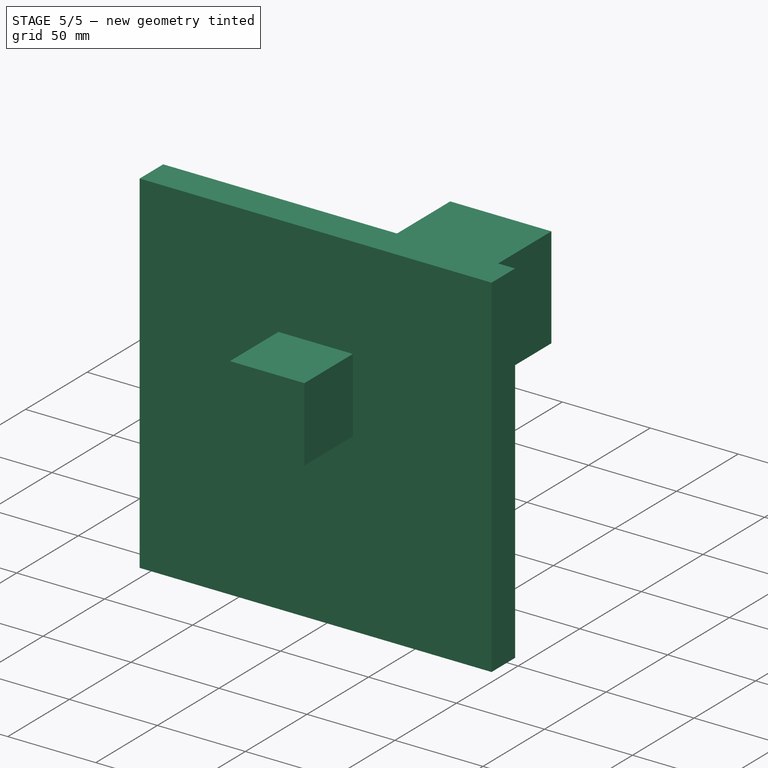
[diagram: stage 5 of 5 — iso view after this stage's code; geometry added in this stage tinted green]
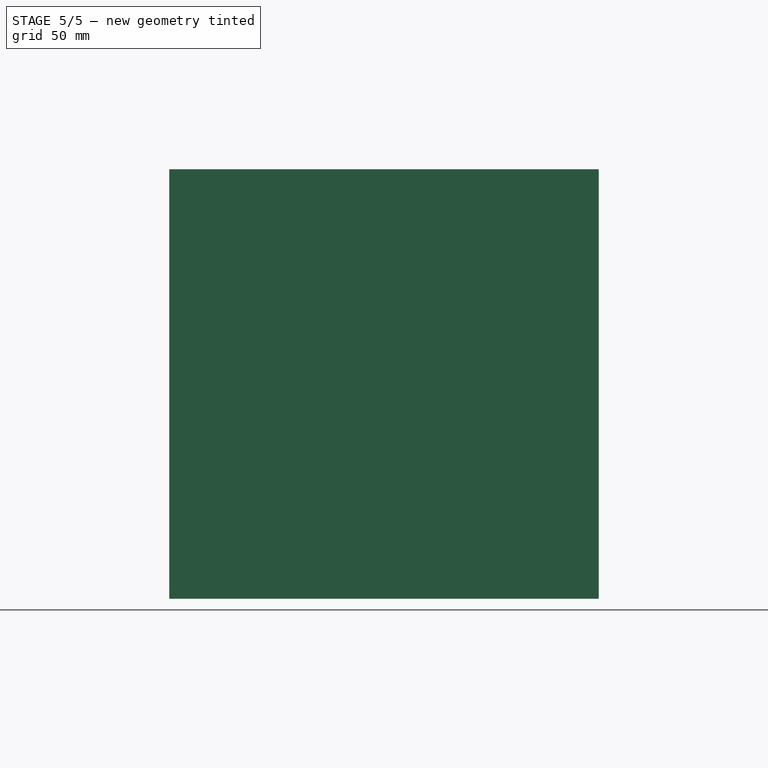
[diagram: stage 5 of 5 — front view after this stage's code; geometry added in this stage tinted green]
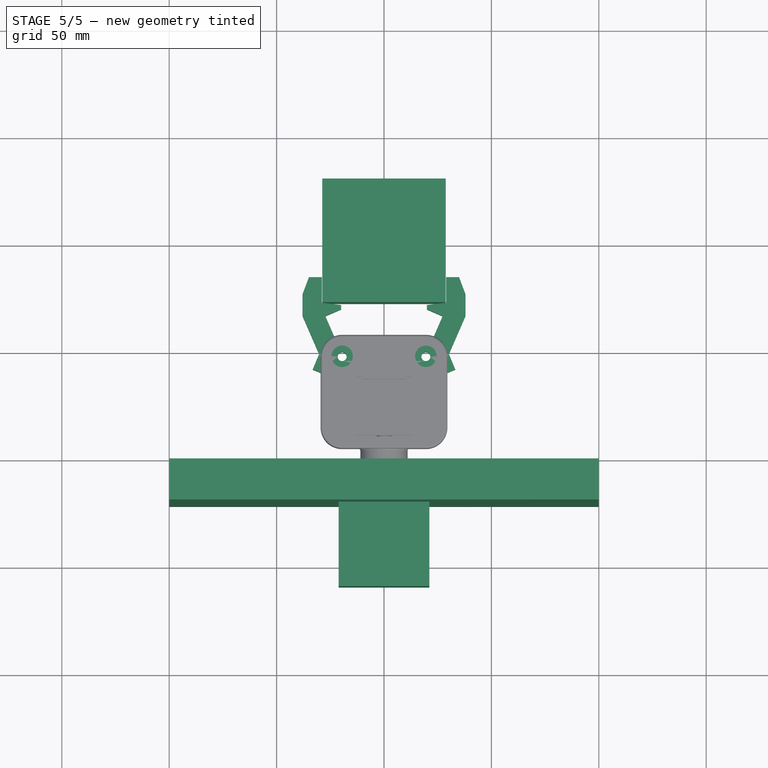
[diagram: stage 5 of 5 — top view after this stage's code; geometry added in this stage tinted green]
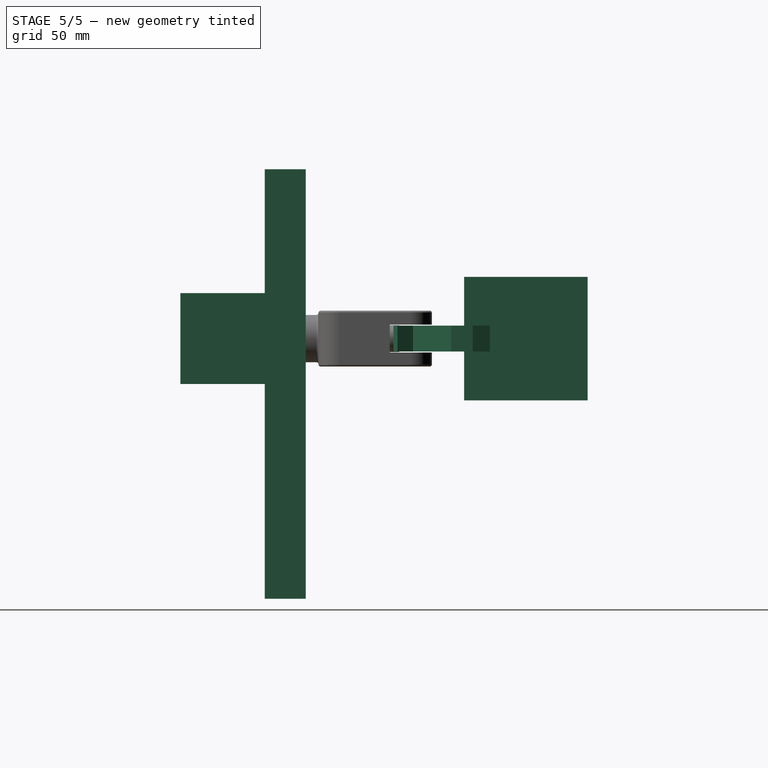
[diagram: stage 5 of 5 — right view after this stage's code; geometry added in this stage tinted green]
FEATURE [Sketcher::SketchObject] Sketch
  Placement = pos=(0,-53.75,-6) rot=(0,0,1;0rad)
  sketch-geometry (58):
    g0: Circle [constr] CenterX=-19.5 CenterY=0 CenterZ=0 NormalX=0 NormalY=0 NormalZ=1 Radius=26.7264
    g1: LineSegment [constr] StartX=-28.95 StartY=82.9 StartZ=0 EndX=28.95 EndY=82.9 EndZ=0
    g2: LineSegment [constr] StartX=28.95 StartY=82.9 StartZ=0 EndX=28.95 EndY=25 EndZ=0
    g3: LineSegment [constr] StartX=28.95 StartY=25 StartZ=0 EndX=-28.95 EndY=25 EndZ=0
    g4: LineSegment [constr] StartX=-28.95 StartY=25 StartZ=0 EndX=-28.95 EndY=82.9 EndZ=0
    g5: Circle [constr] CenterX=0 CenterY=53.95 CenterZ=0 NormalX=0 NormalY=0 NormalZ=1 Radius=40.9415
    g6: LineSegment [constr] StartX=-28.95 StartY=25 StartZ=0 EndX=-40.9415 EndY=25 EndZ=0
    g7: LineSegment [constr] StartX=-40.9415 StartY=25 StartZ=0 EndX=-40.9415 EndY=82.9 EndZ=0
    g8: LineSegment [constr] StartX=-40.9415 StartY=82.9 StartZ=0 EndX=-28.95 EndY=82.9 EndZ=0
    g9: LineSegment [constr] StartX=28.95 StartY=82.9 StartZ=0 EndX=40.9415 EndY=82.9 EndZ=0
    g10: LineSegment [constr] StartX=40.9415 StartY=82.9 StartZ=0 EndX=40.9415 EndY=25 EndZ=0
    g11: LineSegment [constr] StartX=40.9415 StartY=25 StartZ=0 EndX=28.95 EndY=25 EndZ=0
    g12: Circle [constr] CenterX=-19.5 CenterY=0 CenterZ=0 NormalX=0 NormalY=0 NormalZ=1 Radius=24.0042
    g13: LineSegment StartX=-19.95 StartY=24 StartZ=0 EndX=-28.95 EndY=25 EndZ=0
    g14: LineSegment StartX=-28.95 StartY=25 StartZ=0 EndX=-28.95 EndY=37 EndZ=0
    g15: LineSegment StartX=19.95 StartY=24 StartZ=0 EndX=28.95 EndY=25 EndZ=0
    g16: LineSegment StartX=28.95 StartY=25 StartZ=0 EndX=28.95 EndY=37 EndZ=0
    g17: LineSegment StartX=-28.95 StartY=37 StartZ=0 EndX=-34.95 EndY=37 EndZ=0
    g18: LineSegment StartX=-34.95 StartY=37 StartZ=0 EndX=-37.95 EndY=29 EndZ=0
    g19: LineSegment StartX=-37.95 StartY=29 StartZ=0 EndX=-37.95 EndY=19 EndZ=0
    g20: LineSegment [constr] StartX=-37.95 StartY=19 StartZ=0 EndX=-27.5 EndY=-5 EndZ=0
    g21: LineSegment StartX=-27.5 StartY=-5 StartZ=0 EndX=-6.5 EndY=-5 EndZ=0
    g22: LineSegment StartX=-6.5 StartY=-5 StartZ=0 EndX=-6.5 EndY=-2 EndZ=0
    g23: LineSegment StartX=-6.5 StartY=-2 StartZ=0 EndX=-12.5 EndY=-2 EndZ=0
    g24: LineSegment StartX=-12.5 StartY=-2 StartZ=0 EndX=-12.5 EndY=3 EndZ=0
    g25: LineSegment StartX=-12.5 StartY=3 StartZ=0 EndX=-7.5 EndY=3 EndZ=0
    g26: LineSegment StartX=-7.5 StartY=3 StartZ=0 EndX=-7.5 EndY=6 EndZ=0
    g27: LineSegment StartX=-7.5 StartY=6 StartZ=0 EndX=-21.7088 EndY=6 EndZ=0
    g28: Circle CenterX=-19.5 CenterY=0 CenterZ=0 NormalX=0 NormalY=0 NormalZ=1 Radius=2.1
    g29: Circle CenterX=19.5 CenterY=0 CenterZ=0 NormalX=0 NormalY=0 NormalZ=1 Radius=2.1
    g30: Circle [constr] CenterX=-19.5 CenterY=0 CenterZ=0 NormalX=0 NormalY=0 NormalZ=1 Radius=38.1877
    g31: LineSegment StartX=21.7088 StartY=6 StartZ=0 EndX=7.5 EndY=6 EndZ=0
    g32: LineSegment StartX=7.5 StartY=6 StartZ=0 EndX=7.5 EndY=3 EndZ=0
    g33: LineSegment StartX=7.5 StartY=3 StartZ=0 EndX=12.5 EndY=3 EndZ=0
    g34: LineSegment StartX=12.5 StartY=3 StartZ=0 EndX=12.5 EndY=-2 EndZ=0
    g35: LineSegment StartX=12.5 StartY=-2 StartZ=0 EndX=6.5 EndY=-2 EndZ=0
    g36: LineSegment StartX=6.5 StartY=-2 StartZ=0 EndX=6.5 EndY=-5 EndZ=0
    g37: LineSegment StartX=6.5 StartY=-5 StartZ=0 EndX=27.5 EndY=-5 EndZ=0
    g38: LineSegment [constr] StartX=27.5 StartY=-5 StartZ=0 EndX=37.95 EndY=19 EndZ=0
    g39: LineSegment StartX=37.95 StartY=19 StartZ=0 EndX=37.95 EndY=29 EndZ=0
    g40: LineSegment StartX=37.95 StartY=29 StartZ=0 EndX=34.95 EndY=37 EndZ=0
    g41: LineSegment StartX=34.95 StartY=37 StartZ=0 EndX=28.95 EndY=37 EndZ=0
    g42: LineSegment StartX=-21.7088 StartY=6 StartZ=0 EndX=-27.2849 EndY=18.8063 EndZ=0
    g43: LineSegment StartX=-27.2849 StartY=18.8063 StartZ=0 EndX=-19.95 EndY=22 EndZ=0
    g44: LineSegment StartX=-19.95 StartY=22 StartZ=0 EndX=-19.95 EndY=24 EndZ=0
    g45: LineSegment StartX=21.7088 StartY=6 StartZ=0 EndX=27.2849 EndY=18.8063 EndZ=0
    g46: LineSegment StartX=27.2849 StartY=18.8063 StartZ=0 EndX=19.95 EndY=22 EndZ=0
    g47: LineSegment StartX=19.95 StartY=22 StartZ=0 EndX=19.95 EndY=24 EndZ=0
    g48: LineSegment StartX=-33.2 StartY=-6 StartZ=0 EndX=-29.6 EndY=-7.5 EndZ=0
    g49: LineSegment StartX=-29.6 StartY=-7.5 StartZ=0 EndX=-28.6982 EndY=-7.87574 EndZ=0
    g50: LineSegment StartX=-28.6982 StartY=-7.87574 StartZ=0 EndX=-27.5 EndY=-5 EndZ=0
    g51: LineSegment StartX=-33.2 StartY=-6 StartZ=0 EndX=-30.1998 EndY=1.20049 EndZ=0
    g52: LineSegment StartX=-30.1998 StartY=1.20049 StartZ=0 EndX=-37.95 EndY=19 EndZ=0
    g53: LineSegment StartX=37.95 StartY=19 StartZ=0 EndX=30.1998 EndY=1.20049 EndZ=0
    g54: LineSegment StartX=30.1998 StartY=1.20049 StartZ=0 EndX=33.2 EndY=-6 EndZ=0
    g55: LineSegment StartX=33.2 StartY=-6 StartZ=0 EndX=29.6 EndY=-7.5 EndZ=0
    g56: LineSegment StartX=29.6 StartY=-7.5 StartZ=0 EndX=28.6982 EndY=-7.87574 EndZ=0
    g57: LineSegment StartX=28.6982 StartY=-7.87574 StartZ=0 EndX=27.5 EndY=-5 EndZ=0
  constraints (159):
    c: PointOnObject(g0,g-1)
    c: Coincident(g1,g2)
    c: Coincident(g2,g3)
    c: Coincident(g3,g4)
    c: Coincident(g4,g1)
    c: Horizontal(g1)
    c: Horizontal(g3)
    c: Vertical(g2)
    c: Vertical(g4)
    c: Equal(g3,g2)
    c: DistanceY(g2) = -57.9
    c: Symmetric(g1,g1,g-2)
    c: PointOnObject(g5,g-2)
    c: PointOnObject(g2,g5)
    c: PointOnObject(g1,g5)
    c: Coincident(g3,g6)
    c: Horizontal(g6)
    c: Coincident(g6,g7)
    c: Vertical(g7)
    c: Coincident(g7,g8)
    c: Coincident(g8,g1)
    c: Horizontal(g8)
    c: Horizontal(g9)
    c: Coincident(g9,g10)
    c: Vertical(g10)
    c: Coincident(g10,g11)
    c: Coincident(g11,g2)
    c: Horizontal(g11)
    c: Tangent(g10,g5)
    c: Tangent(g7,g5)
    c: Coincident(g1,g9)
    c: PointOnObject(g3,g0)
    c: Coincident(g12,g0)
    c: PointOnObject(g13,g12)
    c: Coincident(g13,g3)
    c: Coincident(g14,g3)
    c: PointOnObject(g14,g4)
    c: DistanceY(g13,g3) = 1
    c: Coincident(g15,g2)
    c: Symmetric(g15,g13,g-2)
    c: Coincident(g16,g2)
    c: PointOnObject(g16,g2)
    c: Symmetric(g16,g14,g-2)
    c: DistanceY(g3,g14) = 12
    c: DistanceX(g13,g3) = -9
    c: Coincident(g14,g17)
    c: Horizontal(g17)
    c: Coincident(g17,g18)
    c: Coincident(g18,g19)
    c: Vertical(g19)
    c: Coincident(g19,g20)
    c: Coincident(g20,g21)
    c: Horizontal(g21)
    c: Coincident(g21,g22)
    c: Vertical(g22)
    c: Coincident(g22,g23)
    c: Horizontal(g23)
    c: Coincident(g23,g24)
    c: Vertical(g24)
    c: Coincident(g24,g25)
    c: Horizontal(g25)
    c: Coincident(g25,g26)
    c: Vertical(g26)
    c: Coincident(g26,g27)
    c: Horizontal(g27)
    c: Coincident(g28,g0)
    c: Radius(g28) = 2.1
    c: Equal(g29,g28)
    c: Coincident(g30,g0)
    c: PointOnObject(g14,g30)
    c: Horizontal(g31)
    c: Coincident(g31,g32)
    c: Coincident(g32,g33)
    c: Horizontal(g33)
    c: Coincident(g33,g34)
    c: Vertical(g34)
    c: Coincident(g34,g35)
    c: Horizontal(g35)
    c: Coincident(g35,g36)
    c: Vertical(g36)
    c: Coincident(g36,g37)
    c: Horizontal(g37)
    c: Coincident(g37,g38)
    c: Coincident(g38,g39)
    c: Vertical(g39)
    c: Coincident(g39,g40)
    c: Coincident(g40,g41)
    c: Coincident(g41,g16)
    c: Horizontal(g41)
    c: Equal(g36,g22)
    c: Equal(g22,g26)
    c: Equal(g26,g32)
    c: Vertical(g32)
    c: Equal(g21,g37)
    c: Equal(g23,g35)
    c: Equal(g25,g33)
    c: Equal(g27,g31)
    c: Equal(g21,g37)
    c: Symmetric(g21,g36,g-2)
    c: Symmetric(g0,g29,g-2)
    c: Equal(g19,g39)
    c: Symmetric(g19,g38,g-2)
    c: Equal(g41,g17)
    c: DistanceX(g41) = -6
    c: DistanceX(g2,g39) = 9
    c: DistanceY(g-1,g2) = 25
    c: DistanceX(g0,g29) = 39
    c: DistanceX(g21,g0) = -13
    c: DistanceY(g22) = 3
    c: DistanceY(g24) = 5
    c: DistanceX(g0,g26) = 12
    c: DistanceY(g39,g40) = 8
    c: DistanceY(g38,g29) = -19
    c: DistanceY(g29,g37) = -5
    c: DistanceX(g37,g29) = -8
    c: DistanceX(g34,g29) = 7
    c: Coincident(g27,g42)
    c: Coincident(g42,g43)
    c: Coincident(g43,g44)
    c: Coincident(g44,g13)
    c: Coincident(g31,g45)
    c: Coincident(g45,g46)
    c: Coincident(g46,g47)
    c: Coincident(g47,g15)
    c: Vertical(g44)
    c: Vertical(g47)
    c: Perpendicular(g45,g46)
    c: Parallel(g45,g38)
    c: Equal(g34,g24)
    c: Symmetric(g42,g45,g-2)
    c: Equal(g27,g31)
    c: DistanceY(g43,g13) = 2
    c: Equal(g44,g47)
    c: Distance(g43) = 8
    c: Coincident(g50,g49)
    c: Coincident(g50,g20)
    c: Coincident(g51,g48)
    c: PointOnObject(g51,g20)
    c: DistanceX(g48,g0) = 10.1
    c: DistanceY(g48,g0) = 7.5
    c: DistanceX(g48,g49) = 3.6
    c: DistanceY(g48,g48) = 1.5
    c: Coincident(g52,g51)
    c: Coincident(g52,g19)
    c: Perpendicular(g51,g48)
    c: Coincident(g48,g49)
    c: Coincident(g38,g53)
    c: PointOnObject(g53,g38)
    c: Coincident(g53,g54)
    c: Coincident(g54,g55)
    c: Coincident(g55,g56)
    c: Coincident(g56,g57)
    c: Coincident(g57,g37)
    c: Symmetric(g48,g55,g-2)
    c: Symmetric(g54,g48,g-2)
    c: Perpendicular(g54,g55)
    c: Parallel(g49,g48)
    c: Perpendicular(g50,g49)
    c: Symmetric(g56,g49,g-2)
FEATURE [PartDesign::Pad] Pad  label="ARMS"
  Length = 12
  Length2 = 100
  Placement = pos=(0,-53.75,-6) rot=(0,0,1;0rad)
  Sketch = -> Sketch
  Type = 0
FEATURE [Part::Box] Box  label="The Cube"
  Height = 57.5
  Length = 57.5
  Placement = pos=(-28.75,-28.75,-28.75) rot=(0,0,1;0rad)
  Width = 57.5
FEATURE [Sketcher::SketchObject] Sketch008
  ExternalGeometry = -> [Pad007]
  Placement = pos=(0,-119.55,-21.15) rot=(0,0.707107,0.707107;3.14159rad)
  Support = -> Pad007 [Face8]
  sketch-geometry (4):
    g0: Circle [constr] CenterX=0 CenterY=21.15 CenterZ=0 NormalX=0 NormalY=0 NormalZ=1 Radius=2.65
    g1: LineSegment StartX=-1.67929 StartY=23.2 StartZ=0 EndX=1.67929 EndY=23.2 EndZ=0
    g2: GeomPoint [constr] X=0 Y=18.5 Z=0
    g3: ArcOfCircle CenterX=0 CenterY=21.15 CenterZ=0 NormalX=0 NormalY=0 NormalZ=1 Radius=2.65 StartAngle=2.25711 EndAngle=7.16766
  constraints (11):
    c: Coincident(g0,g-3)
    c: Radius(g0) = 2.65
    c: PointOnObject(g1,g0)
    c: PointOnObject(g1,g0)
    c: Horizontal(g1)
    c: PointOnObject(g2,g0)
    c: PointOnObject(g2,g-2)
    c: DistanceY(g1,g2) = -4.7
    c: Coincident(g3,g0)
    c: Coincident(g3,g1)
    c: Coincident(g3,g1)
FEATURE [PartDesign::Pad] Pad008  label="MOTOR"
  Length = 21
  Length2 = 100
  Placement = pos=(0,0,-21.15) rot=(0,0,1;0rad)
  Sketch = -> Sketch008
  Type = 0
FEATURE [Sketcher::SketchObject] Sketch010
  ExternalGeometry = -> [Pad008]
  Placement = pos=(0,-121.55,-21.15) rot=(0,0.707107,0.707107;3.14159rad)
  Support = -> Pad008 [Face3]
  sketch-geometry (5):
    g0: LineSegment StartX=-100 StartY=100 StartZ=0 EndX=100 EndY=100 EndZ=0
    g1: LineSegment StartX=100 StartY=100 StartZ=0 EndX=100 EndY=-100 EndZ=0
    g2: LineSegment StartX=100 StartY=-100 StartZ=0 EndX=-100 EndY=-100 EndZ=0
    g3: LineSegment StartX=-100 StartY=-100 StartZ=0 EndX=-100 EndY=100 EndZ=0
    g4: Circle CenterX=0 CenterY=21.15 CenterZ=0 NormalX=0 NormalY=0 NormalZ=1 Radius=12.7
  constraints (14):
    c: Coincident(g0,g1)
    c: Coincident(g1,g2)
    c: Coincident(g2,g3)
    c: Coincident(g3,g0)
    c: Horizontal(g0)
    c: Horizontal(g2)
    c: Vertical(g1)
    c: Vertical(g3)
    c: Symmetric(g0,g0,g-2)
    c: Symmetric(g0,g2,g-1)
    c: Equal(g3,g0)
    c: DistanceX(g0) = 200
    c: Coincident(g4,g-3)
    c: Radius(g4) = 12.7
FEATURE [PartDesign::Pad] Pad009  label="THE BOARD"
  Length = 19.1
  Length2 = 100
  Placement = pos=(0,0,-21.15) rot=(0,0,1;0rad)
  Sketch = -> Sketch010
  Type = 0
FEATURE [Sketcher::SketchObject] Sketch016
  ExternalGeometry = -> [Pocket005]
  Placement = pos=(0,-53.75,-11.3) rot=(0,0,1;0rad)
  Support = -> Pocket005 [Face21]
  sketch-geometry (4):
    g0: LineSegment StartX=-10.8 StartY=-34.9 StartZ=0 EndX=10.8 EndY=-34.9 EndZ=0
    g1: LineSegment StartX=10.8 StartY=-34.9 StartZ=0 EndX=10.8 EndY=-12.7 EndZ=0
    g2: LineSegment StartX=10.8 StartY=-12.7 StartZ=0 EndX=-10.8 EndY=-12.7 EndZ=0
    g3: LineSegment StartX=-10.8 StartY=-12.7 StartZ=0 EndX=-10.8 EndY=-34.9 EndZ=0
  constraints (12):
    c: Coincident(g0,g1)
    c: Coincident(g1,g2)
    c: Coincident(g2,g3)
    c: Coincident(g3,g0)
    c: Horizontal(g0)
    c: Horizontal(g2)
    c: Vertical(g1)
    c: Vertical(g3)
    c: Symmetric(g2,g1,g-2)
    c: DistanceY(g1,g-7) = 2
    c: DistanceY(g0,g-9) = -2
    c: DistanceX(g0,g-9) = 2
FEATURE [Sketcher::SketchObject] Sketch017
  Placement = pos=(-10.4,-53.75,-13) rot=(0.57735,-0.57735,-0.57735;2.0944rad)
  sketch-geometry (1):
    g0: Circle CenterX=0 CenterY=13 CenterZ=0 NormalX=0 NormalY=0 NormalZ=1 Radius=9
  constraints (1):
    c: Radius(g0) = 9
FEATURE [PartDesign::Pocket] Pocket007  label="main body pre2"
  Length = 25
  Placement = pos=(0,-53.75,-13) rot=(0,0,1;0rad)
  Sketch = -> Sketch017
  Type = 0
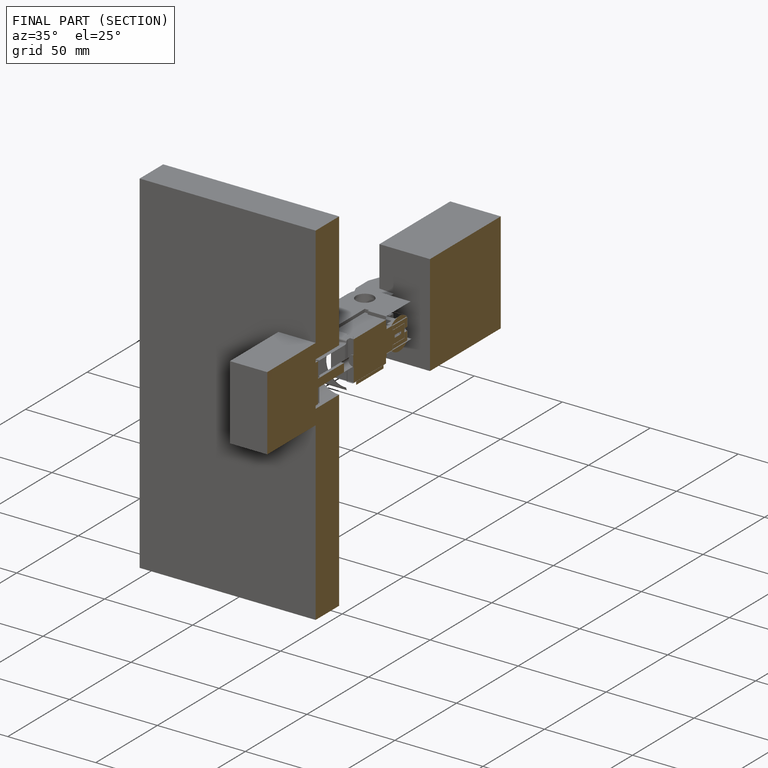
[diagram: finished part — half-section view (interior)]
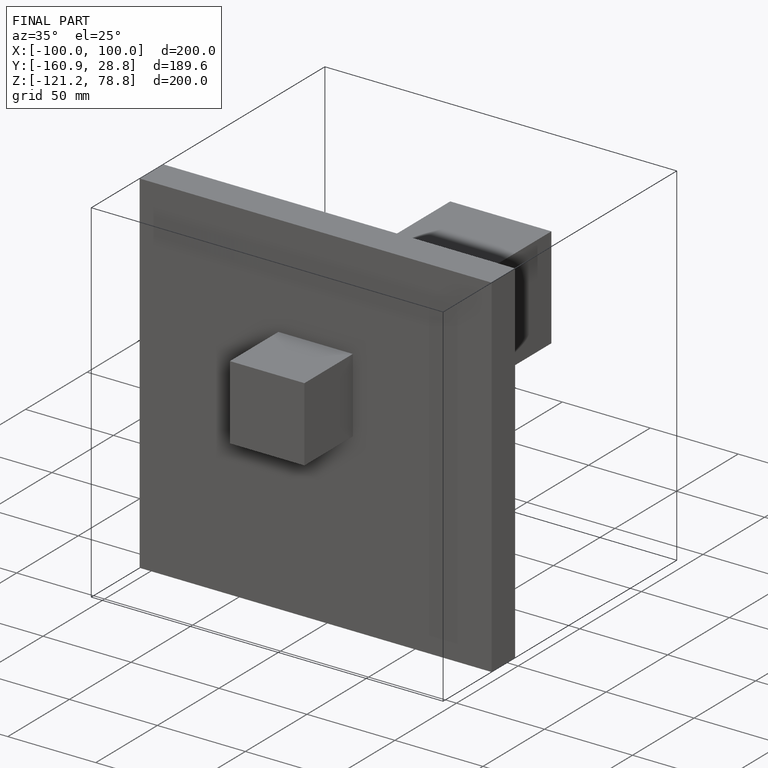
[diagram: finished part — iso view with bounding-box wireframe]
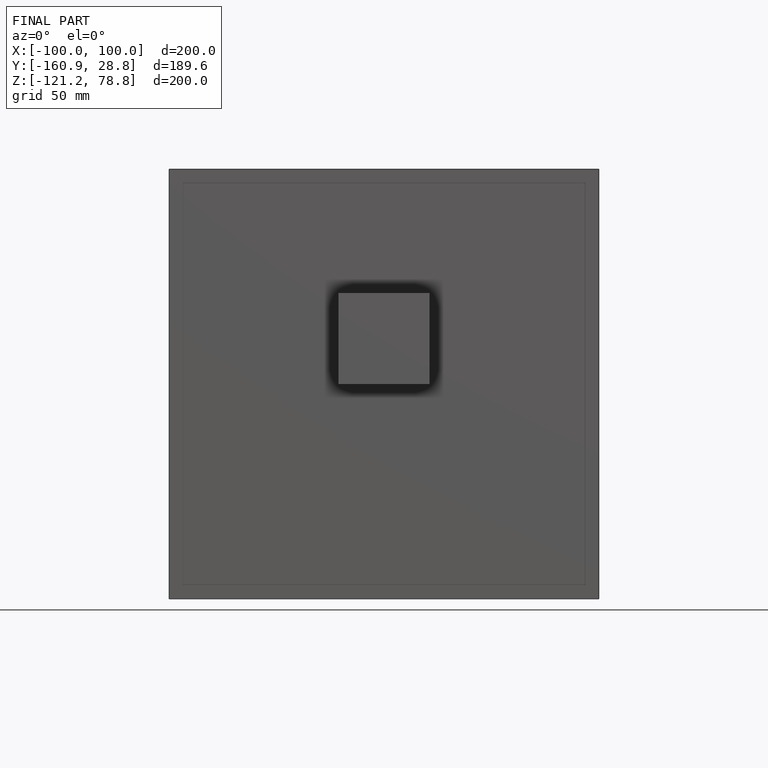
[diagram: finished part — front view with bounding-box wireframe]
